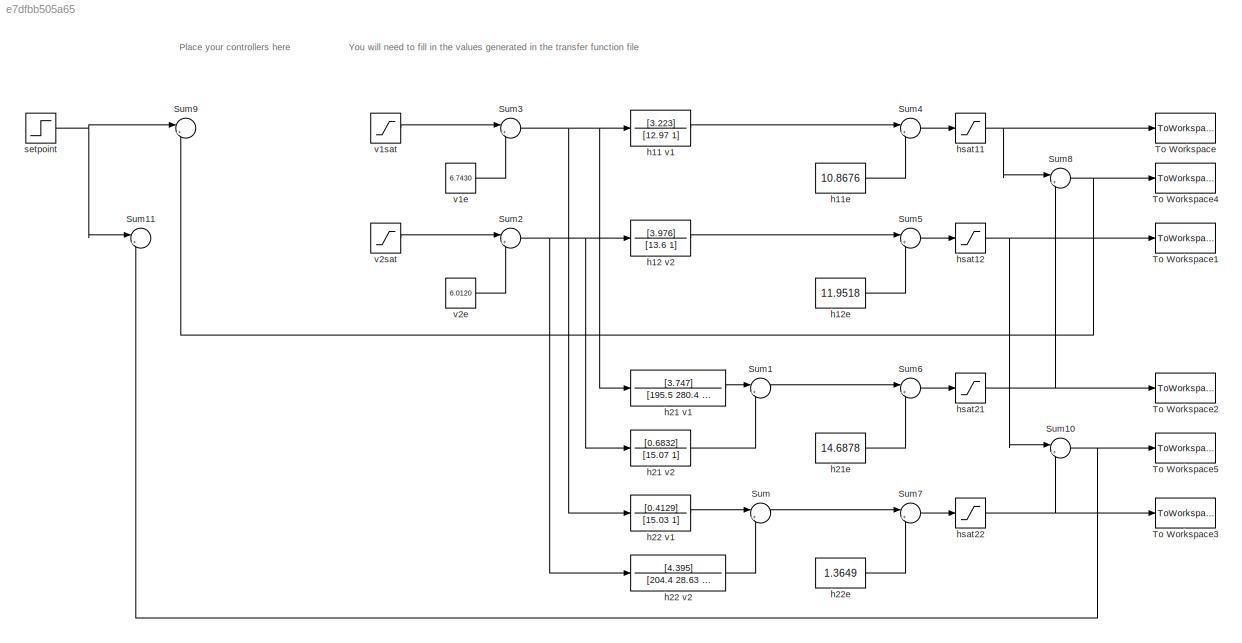
MODEL slx_e7dfbb505a65
KIND model
CONFIG AbsTol = auto
CONFIG FixedStep = auto
CONFIG MaxStep = auto
CONFIG MinStep = auto
CONFIG RelTol = 1e-3
CONFIG SampleTimeConstraint = Unconstrained
CONFIG Solver = VariableStepAuto
CONFIG SolverMode = Auto
CONFIG SolverName = VariableStepAuto
CONFIG StartTime = 0.0
CONFIG StopTime = 10.0
BLOCK [Sum] Sum
  IconShape = round
  InputSameDT = off
  Inputs = |++
  OutDataTypeStr = Inherit: Inherit via internal rule
  Ports = [2, 1]
  SaturateOnIntegerOverflow = off
BLOCK [Sum] Sum1
  IconShape = round
  InputSameDT = off
  Inputs = |++
  OutDataTypeStr = Inherit: Inherit via internal rule
  Ports = [2, 1]
  SaturateOnIntegerOverflow = off
BLOCK [Sum] Sum10
  IconShape = round
  InputSameDT = off
  Inputs = |++
  OutDataTypeStr = Inherit: Inherit via internal rule
  Ports = [2, 1]
  SaturateOnIntegerOverflow = off
BLOCK [Sum] Sum11
  IconShape = round
  InputSameDT = off
  Inputs = |+-
  OutDataTypeStr = Inherit: Inherit via internal rule
  Ports = [2, 1]
  SaturateOnIntegerOverflow = off
BLOCK [Sum] Sum2
  IconShape = round
  InputSameDT = off
  Inputs = |+-
  OutDataTypeStr = Inherit: Inherit via internal rule
  Ports = [2, 1]
  SaturateOnIntegerOverflow = off
BLOCK [Sum] Sum3
  IconShape = round
  InputSameDT = off
  Inputs = |+-
  OutDataTypeStr = Inherit: Inherit via internal rule
  Ports = [2, 1]
  SaturateOnIntegerOverflow = off
BLOCK [Sum] Sum4
  IconShape = round
  InputSameDT = off
  Inputs = |++
  OutDataTypeStr = Inherit: Inherit via internal rule
  Ports = [2, 1]
  SaturateOnIntegerOverflow = off
BLOCK [Sum] Sum5
  IconShape = round
  InputSameDT = off
  Inputs = |++
  OutDataTypeStr = Inherit: Inherit via internal rule
  Ports = [2, 1]
  SaturateOnIntegerOverflow = off
BLOCK [Sum] Sum6
  IconShape = round
  InputSameDT = off
  Inputs = |++
  OutDataTypeStr = Inherit: Inherit via internal rule
  Ports = [2, 1]
  SaturateOnIntegerOverflow = off
BLOCK [Sum] Sum7
  IconShape = round
  InputSameDT = off
  Inputs = |++
  OutDataTypeStr = Inherit: Inherit via internal rule
  Ports = [2, 1]
  SaturateOnIntegerOverflow = off
BLOCK [Sum] Sum8
  IconShape = round
  InputSameDT = off
  Inputs = |++
  OutDataTypeStr = Inherit: Inherit via internal rule
  Ports = [2, 1]
  SaturateOnIntegerOverflow = off
BLOCK [Sum] Sum9
  IconShape = round
  InputSameDT = off
  Inputs = |+-
  OutDataTypeStr = Inherit: Inherit via internal rule
  Ports = [2, 1]
  SaturateOnIntegerOverflow = off
BLOCK [ToWorkspace] To Workspace
  FixptAsFi = on
  MaxDataPoints = inf
  Ports = [1]
  SampleTime = -1
  Save2DSignal = 3-D array (concatenate along third dimension)
  SaveFormat = Timeseries
  VariableName = tank11
BLOCK [ToWorkspace] To Workspace1
  FixptAsFi = on
  MaxDataPoints = inf
  Ports = [1]
  SampleTime = -1
  Save2DSignal = 3-D array (concatenate along third dimension)
  SaveFormat = Timeseries
  VariableName = tank12
BLOCK [ToWorkspace] To Workspace2
  FixptAsFi = on
  MaxDataPoints = inf
  Ports = [1]
  SampleTime = -1
  Save2DSignal = 3-D array (concatenate along third dimension)
  SaveFormat = Timeseries
  VariableName = tank21
BLOCK [ToWorkspace] To Workspace3
  FixptAsFi = on
  MaxDataPoints = inf
  Ports = [1]
  SampleTime = -1
  Save2DSignal = 3-D array (concatenate along third dimension)
  SaveFormat = Timeseries
  VariableName = tank22
BLOCK [ToWorkspace] To Workspace4
  FixptAsFi = on
  MaxDataPoints = inf
  Ports = [1]
  SampleTime = -1
  Save2DSignal = 3-D array (concatenate along third dimension)
  SaveFormat = Timeseries
  VariableName = y1
BLOCK [ToWorkspace] To Workspace5
  FixptAsFi = on
  MaxDataPoints = inf
  Ports = [1]
  SampleTime = -1
  Save2DSignal = 3-D array (concatenate along third dimension)
  SaveFormat = Timeseries
  VariableName = y2
BLOCK [TransferFcn] h11 v1
  Denominator = [12.97 1]
  Numerator = [3.223]
BLOCK [Constant] h11e
  Value = 10.8676
BLOCK [TransferFcn] h12 v2
  Denominator = [13.6 1]
  Numerator = [3.976]
BLOCK [Constant] h12e
  Value = 11.9518
BLOCK [TransferFcn] h21 v1
  Denominator = [195.5 280.4 1]
  Numerator = [3.747]
BLOCK [TransferFcn] h21 v2
  Denominator = [15.07 1]
  Numerator = [0.6832]
BLOCK [Constant] h21e
  Value = 14.6878
BLOCK [TransferFcn] h22 v1
  Denominator = [15.03 1]
  Numerator = [0.4129]
BLOCK [TransferFcn] h22 v2
  Denominator = [204.4 28.63 1]
  Numerator = [4.395]
BLOCK [Constant] h22e
  Value = 1.3649
BLOCK [Saturate] hsat11
  InputPortMap = u0
  LowerLimit = 0
  Ports = [1, 1]
  UpperLimit = 30
BLOCK [Saturate] hsat12
  InputPortMap = u0
  LowerLimit = 0
  Ports = [1, 1]
  UpperLimit = 30
BLOCK [Saturate] hsat21
  InputPortMap = u0
  LowerLimit = 0
  Ports = [1, 1]
  UpperLimit = 30
BLOCK [Saturate] hsat22
  InputPortMap = u0
  LowerLimit = 0
  Ports = [1, 1]
  UpperLimit = 30
BLOCK [Step] setpoint
  After = 26.55
  SampleTime = 0
BLOCK [Constant] v1e
  Value = 6.7430
BLOCK [Saturate] v1sat
  InputPortMap = u0
  LowerLimit = 0
  Ports = [1, 1]
  UpperLimit = 12
BLOCK [Constant] v2e
  Value = 6.0120
BLOCK [Saturate] v2sat
  InputPortMap = u0
  LowerLimit = 0
  Ports = [1, 1]
  UpperLimit = 12
ANNOTATION (root): Place your controllers here
ANNOTATION (root): You will need to fill in the values generated in the transfer function file
NET Sum10:1 -> Sum11:2, To Workspace5:1
LINE Sum1:1 -> Sum6:1
NET Sum2:1 -> h12 v2:1, h21 v2:1, h22 v2:1
NET Sum3:1 -> h11 v1:1, h21 v1:1, h22 v1:1
LINE Sum4:1 -> hsat11:1
LINE Sum5:1 -> hsat12:1
LINE Sum6:1 -> hsat21:1
LINE Sum7:1 -> hsat22:1
NET Sum8:1 -> Sum9:2, To Workspace4:1
LINE Sum:1 -> Sum7:1
LINE h11 v1:1 -> Sum4:1
LINE h11e:1 -> Sum4:2
LINE h12 v2:1 -> Sum5:1
LINE h12e:1 -> Sum5:2
LINE h21 v1:1 -> Sum1:1
LINE h21 v2:1 -> Sum1:2
LINE h21e:1 -> Sum6:2
LINE h22 v1:1 -> Sum:1
LINE h22 v2:1 -> Sum:2
LINE h22e:1 -> Sum7:2
NET hsat11:1 -> Sum8:1, To Workspace:1
NET hsat12:1 -> Sum10:1, To Workspace1:1
NET hsat21:1 -> Sum8:2, To Workspace2:1
NET hsat22:1 -> Sum10:2, To Workspace3:1
NET setpoint:1 -> Sum11:1, Sum9:1
LINE v1e:1 -> Sum3:2
LINE v1sat:1 -> Sum3:1
LINE v2e:1 -> Sum2:2
LINE v2sat:1 -> Sum2:1
note: NET lines group one-source signal fan-out (src -> all destinations, sorted); 1:1 wires keep LINE
